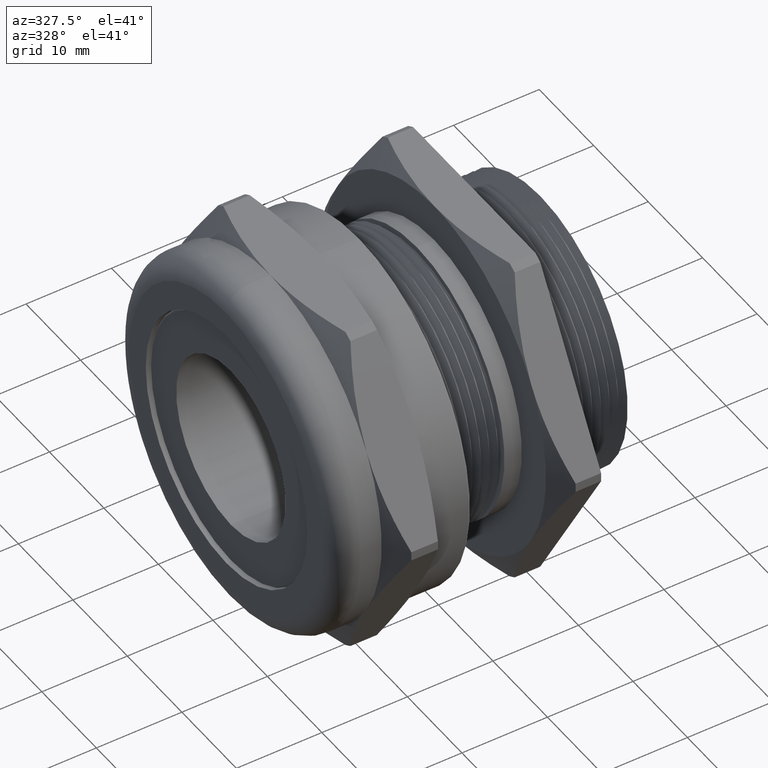
[diagram: clean part render]
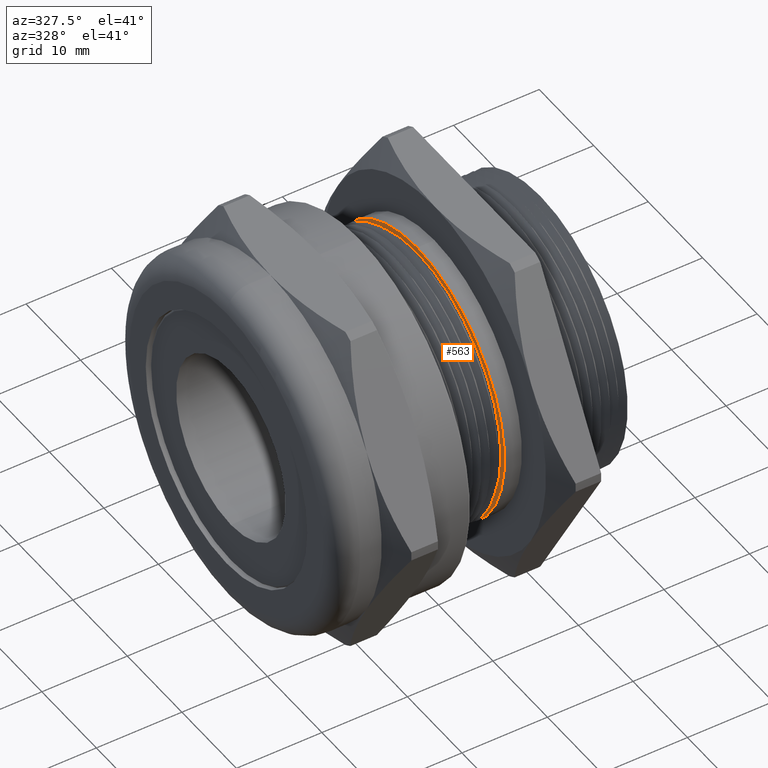
[diagram: same view with one face highlighted and labeled with its STEP entity id]
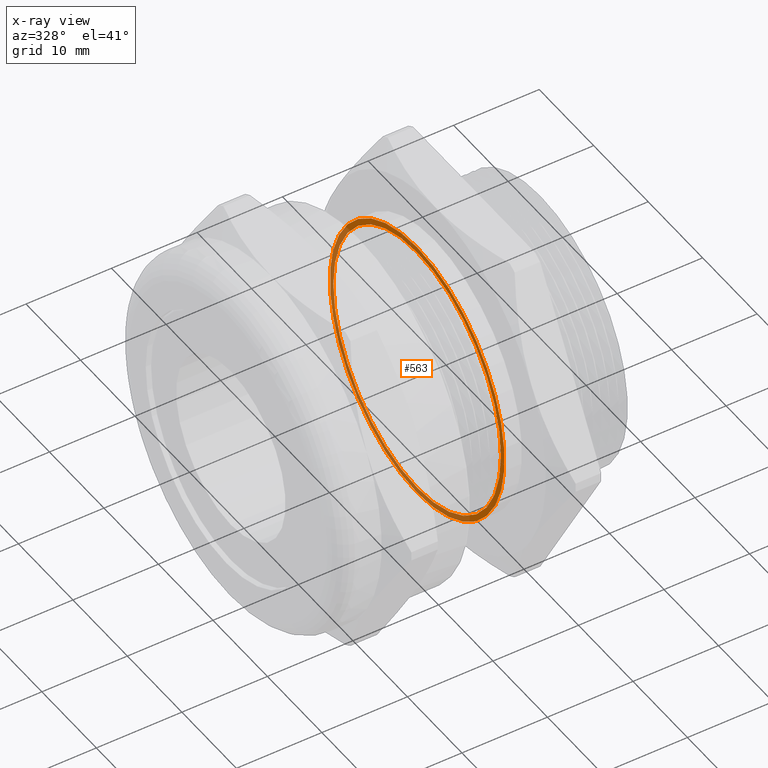
[diagram: x-ray of the same camera — body ghosted, the highlighted face saturated]
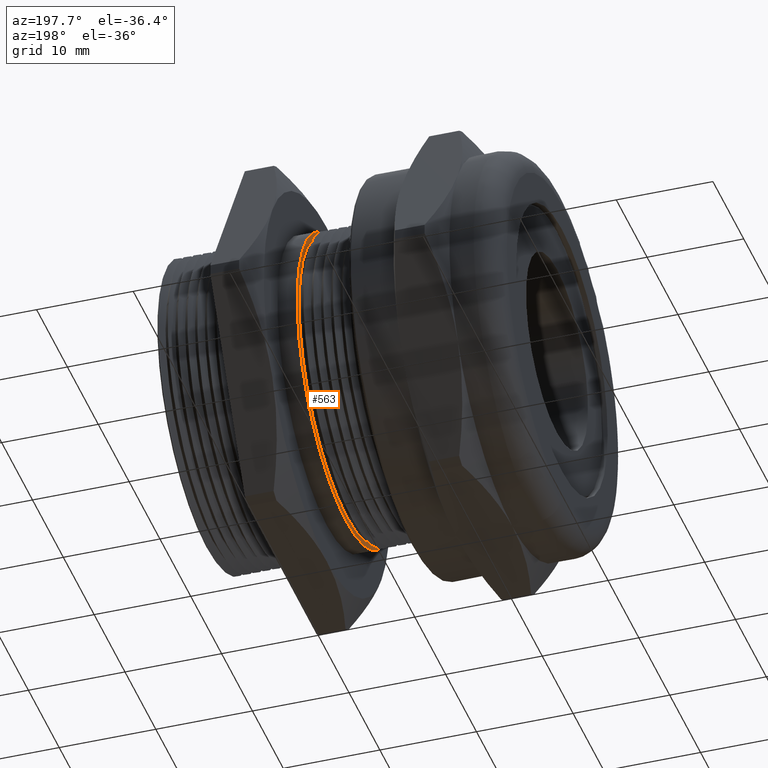
[diagram: same view with one face highlighted and labeled with its STEP entity id]
A machine part, auxiliary view. The second image highlights one B-rep face of the part: STEP entity #563.
The next image is the same camera in x-ray: the body ghosted, the highlighted face saturated — about 45% of this face is hidden behind the body in this view.
A second angle (auxiliary view) of the same face is appended — the face is thin or edge-on in the first view.
In plain terms, the highlighted planar face has unit normal (-1, 0, 0).
Its self-contained STEP definition (entity closure, byte-faithful):
#237 = EDGE_CURVE ( 'NONE', #902, #903, #1713, .T. ) ;
#540 = ORIENTED_EDGE ( 'NONE', *, *, #1001, .T. ) ;
#541 = ORIENTED_EDGE ( 'NONE', *, *, #237, .T. ) ;
#542 = EDGE_LOOP ( 'NONE', ( #543, #545 ) ) ;
#543 = ORIENTED_EDGE ( 'NONE', *, *, #544, .T. ) ;
#544 = EDGE_CURVE ( 'NONE', #628, #627, #2193, .T. ) ;
#545 = ORIENTED_EDGE ( 'NONE', *, *, #632, .T. ) ;
#563 = ADVANCED_FACE ( 'NONE', ( #2239, #2238 ), #2243, .T. ) ;
#564 = EDGE_LOOP ( 'NONE', ( #540, #541 ) ) ;
#627 = VERTEX_POINT ( 'NONE', #2371 ) ;
#628 = VERTEX_POINT ( 'NONE', #2370 ) ;
#632 = EDGE_CURVE ( 'NONE', #627, #628, #2363, .T. ) ;
#902 = VERTEX_POINT ( 'NONE', #2867 ) ;
#903 = VERTEX_POINT ( 'NONE', #2866 ) ;
#1001 = EDGE_CURVE ( 'NONE', #903, #902, #3060, .T. ) ;
#1713 = CIRCLE ( 'NONE', #1775, 0.6052316734517642100 ) ;
#1772 = DIRECTION ( 'NONE',  ( 0.0000000000000000000, 0.0000000000000000000, 1.000000000000000000 ) ) ;
#1773 = DIRECTION ( 'NONE',  ( 1.000000000000000000, 0.0000000000000000000, 0.0000000000000000000 ) ) ;
#1774 = CARTESIAN_POINT ( 'NONE',  ( 0.1525999999999997900, 0.0000000000000000000, 0.0000000000000000000 ) ) ;
#1775 = AXIS2_PLACEMENT_3D ( 'NONE', #1774, #1773, #1772 ) ;
#2192 = AXIS2_PLACEMENT_3D ( 'NONE', #2255, #2254, #2253 ) ;
#2193 = CIRCLE ( 'NONE', #2192, 0.6309999999999997800 ) ;
#2234 = DIRECTION ( 'NONE',  ( 0.0000000000000000000, 0.0000000000000000000, 1.000000000000000000 ) ) ;
#2235 = DIRECTION ( 'NONE',  ( -1.000000000000000000, 0.0000000000000000000, 0.0000000000000000000 ) ) ;
#2236 = CARTESIAN_POINT ( 'NONE',  ( 0.1525999999999997900, 0.0000000000000000000, 0.0000000000000000000 ) ) ;
#2237 = AXIS2_PLACEMENT_3D ( 'NONE', #2236, #2235, #2234 ) ;
#2238 = FACE_OUTER_BOUND ( 'NONE', #542, .T. ) ;
#2239 = FACE_BOUND ( 'NONE', #564, .T. ) ;
#2243 = PLANE ( 'NONE',  #2237 ) ;
#2253 = DIRECTION ( 'NONE',  ( 0.0000000000000000000, 0.0000000000000000000, 1.000000000000000000 ) ) ;
#2254 = DIRECTION ( 'NONE',  ( -1.000000000000000000, 0.0000000000000000000, 0.0000000000000000000 ) ) ;
#2255 = CARTESIAN_POINT ( 'NONE',  ( 0.1525999999999997900, 0.0000000000000000000, 0.0000000000000000000 ) ) ;
#2360 = DIRECTION ( 'NONE',  ( 0.0000000000000000000, 0.0000000000000000000, 1.000000000000000000 ) ) ;
#2361 = DIRECTION ( 'NONE',  ( -1.000000000000000000, 0.0000000000000000000, 0.0000000000000000000 ) ) ;
#2362 = AXIS2_PLACEMENT_3D ( 'NONE', #2369, #2361, #2360 ) ;
#2363 = CIRCLE ( 'NONE', #2362, 0.6309999999999997800 ) ;
#2369 = CARTESIAN_POINT ( 'NONE',  ( 0.1525999999999997900, 0.0000000000000000000, 0.0000000000000000000 ) ) ;
#2370 = CARTESIAN_POINT ( 'NONE',  ( 0.1525999999999997900, 0.0000000000000000000, -0.6309999999999997800 ) ) ;
#2371 = CARTESIAN_POINT ( 'NONE',  ( 0.1525999999999997900, 7.727521302619796400E-017, 0.6309999999999997800 ) ) ;
#2866 = CARTESIAN_POINT ( 'NONE',  ( 0.1525999999999997900, 0.0000000000000000000, -0.6052316734517643200 ) ) ;
#2867 = CARTESIAN_POINT ( 'NONE',  ( 0.1525999999999997900, 7.411950316352992700E-017, 0.6052316734517643200 ) ) ;
#3056 = DIRECTION ( 'NONE',  ( 0.0000000000000000000, 0.0000000000000000000, 1.000000000000000000 ) ) ;
#3057 = DIRECTION ( 'NONE',  ( 1.000000000000000000, 0.0000000000000000000, 0.0000000000000000000 ) ) ;
#3058 = CARTESIAN_POINT ( 'NONE',  ( 0.1525999999999997900, 0.0000000000000000000, 0.0000000000000000000 ) ) ;
#3059 = AXIS2_PLACEMENT_3D ( 'NONE', #3058, #3057, #3056 ) ;
#3060 = CIRCLE ( 'NONE', #3059, 0.6052316734517642100 ) ;